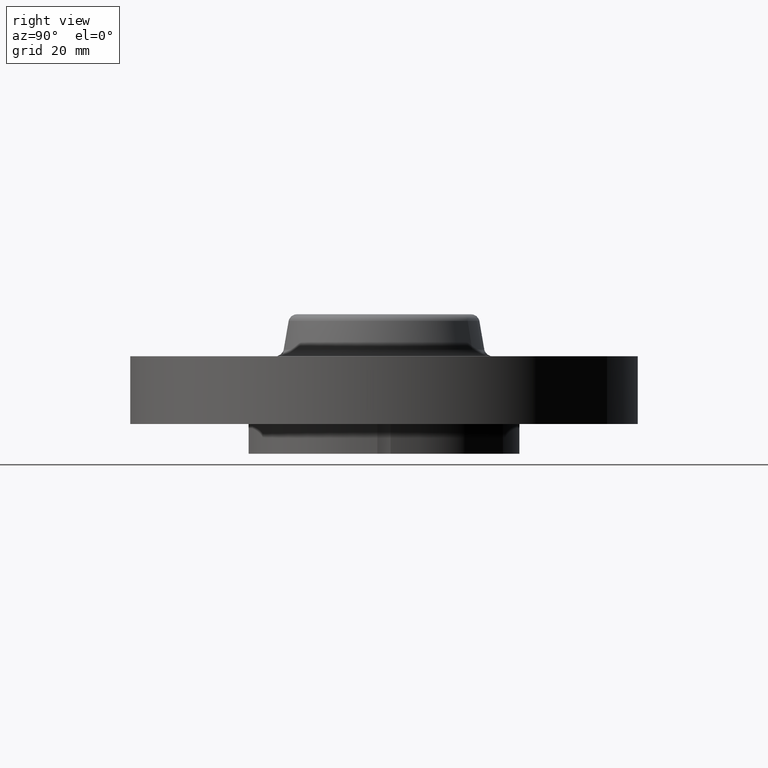
[diagram: clean part render]
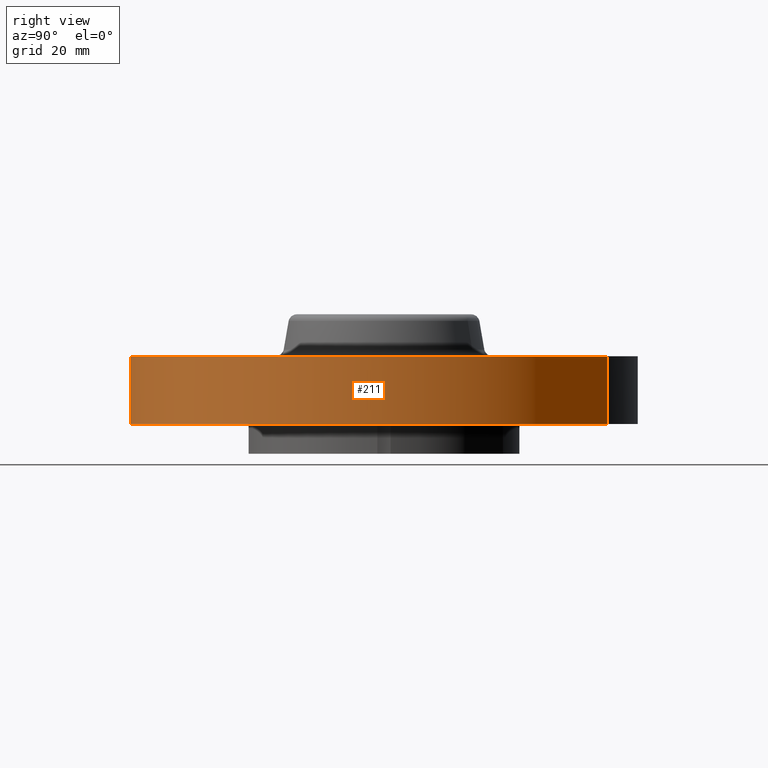
[diagram: same view with one face highlighted and labeled with its STEP entity id]
A machine part, right view. The second image highlights one B-rep face of the part: STEP entity #211.
In plain terms, the highlighted cylindrical surface (partial cylindrical patch) has radius 47.625 mm, axis along (0, 0, -1).
Its self-contained STEP definition (entity closure, byte-faithful):
#158=AXIS2_PLACEMENT_3D('Cylinder Axis2P3D',#155,#156,#157) ;
#197=AXIS2_PLACEMENT_3D('Circle Axis2P3D',#195,#196,$) ;
#202=AXIS2_PLACEMENT_3D('Circle Axis2P3D',#200,#201,$) ;
#155=CARTESIAN_POINT('Axis2P3D Location',(0.,0.,0.295600000001)) ;
#164=CARTESIAN_POINT('Vertex',(-0.898922884886,-1.64546730355,3.49676543189E-017)) ;
#166=CARTESIAN_POINT('Vertex',(0.898922884886,1.64546730355,3.49676543189E-017)) ;
#169=CARTESIAN_POINT('Line Origine',(-0.898922884886,-1.64546730355,0.250000000001)) ;
#173=CARTESIAN_POINT('Vertex',(-0.898922884886,-1.64546730355,0.500000000002)) ;
#180=CARTESIAN_POINT('Vertex',(0.898922884886,1.64546730355,0.500000000002)) ;
#183=CARTESIAN_POINT('Line Origine',(0.898922884886,1.64546730355,0.250000000001)) ;
#195=CARTESIAN_POINT('Axis2P3D Location',(0.,0.,6.99353086378E-017)) ;
#200=CARTESIAN_POINT('Axis2P3D Location',(0.,0.,0.500000000002)) ;
#156=DIRECTION('Axis2P3D Direction',(0.,0.,-0.0393700787402)) ;
#157=DIRECTION('Axis2P3D XDirection',(0.0188750212049,0.0345504945626,0.)) ;
#170=DIRECTION('Vector Direction',(0.,0.,-0.0393700787402)) ;
#184=DIRECTION('Vector Direction',(0.,0.,-0.0393700787402)) ;
#196=DIRECTION('Axis2P3D Direction',(0.,0.,-0.0393700787402)) ;
#201=DIRECTION('Axis2P3D Direction',(0.,0.,-0.0393700787402)) ;
#171=VECTOR('Line Direction',#170,0.0393700787402) ;
#185=VECTOR('Line Direction',#184,0.0393700787402) ;
#206=ORIENTED_EDGE('',*,*,#199,.F.) ;
#207=ORIENTED_EDGE('',*,*,#187,.T.) ;
#208=ORIENTED_EDGE('',*,*,#204,.T.) ;
#209=ORIENTED_EDGE('',*,*,#175,.F.) ;
#211=ADVANCED_FACE('PartBody',(#210),#159,.T.) ;
#198=CIRCLE('generated circle',#197,1.87500000001) ;
#203=CIRCLE('generated circle',#202,1.87500000001) ;
#159=CYLINDRICAL_SURFACE('generated cylinder',#158,1.87500000001) ;
#175=EDGE_CURVE('',#165,#174,#172,.F.) ;
#187=EDGE_CURVE('',#167,#181,#186,.F.) ;
#199=EDGE_CURVE('',#167,#165,#198,.T.) ;
#204=EDGE_CURVE('',#181,#174,#203,.T.) ;
#205=EDGE_LOOP('',(#206,#207,#208,#209)) ;
#210=FACE_OUTER_BOUND('',#205,.T.) ;
#172=LINE('Line',#169,#171) ;
#186=LINE('Line',#183,#185) ;
#165=VERTEX_POINT('',#164) ;
#167=VERTEX_POINT('',#166) ;
#174=VERTEX_POINT('',#173) ;
#181=VERTEX_POINT('',#180) ;